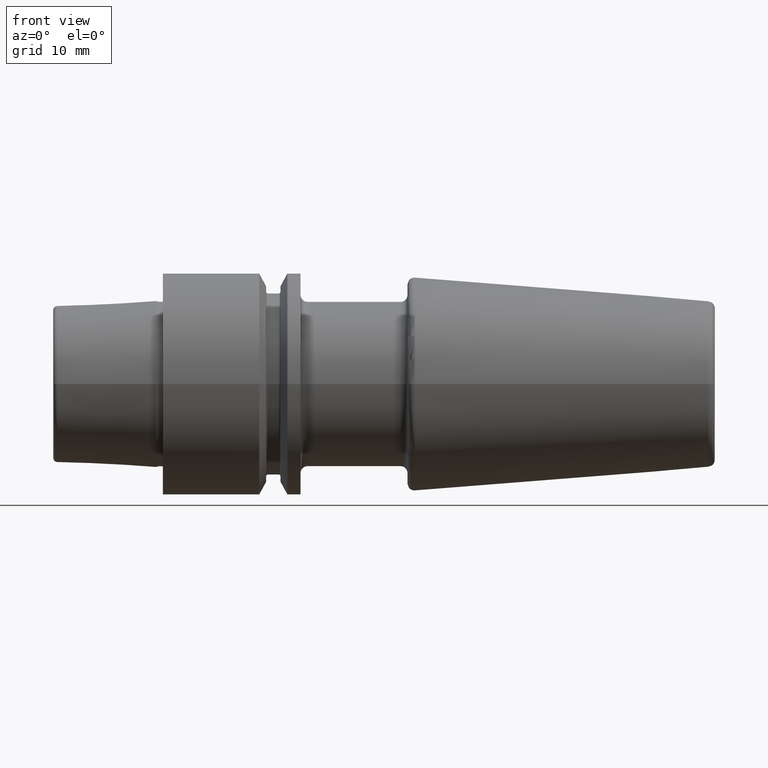
[diagram: clean part render]
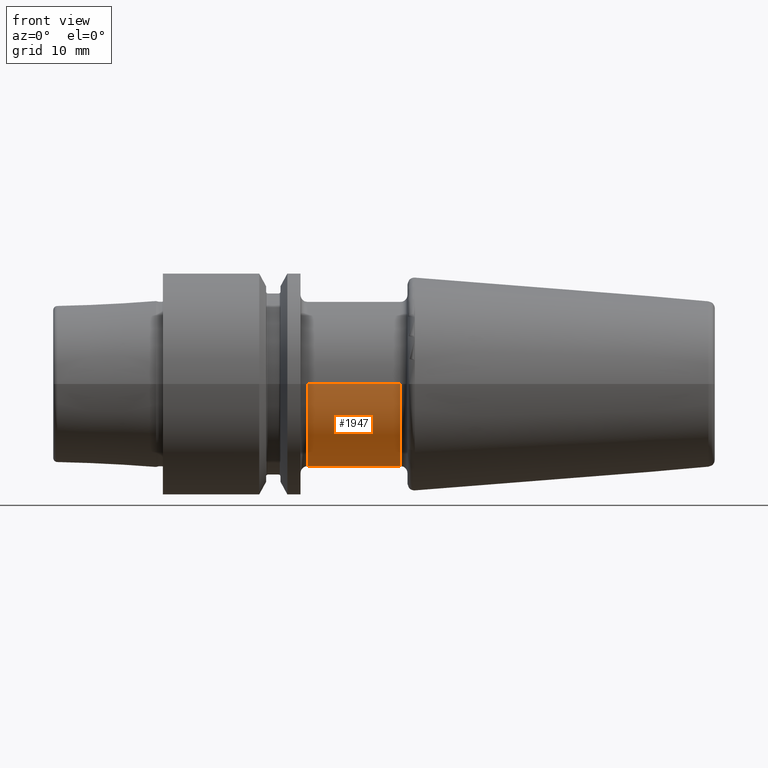
[diagram: same view with one face highlighted and labeled with its STEP entity id]
A machine part, front view. The second image highlights one B-rep face of the part: STEP entity #1947.
In plain terms, the highlighted cylindrical surface (partial cylindrical patch) has radius 12 mm, axis along (1, 0, 0).
Its self-contained STEP definition (entity closure, byte-faithful):
#637=CARTESIAN_POINT('',(2.095E1,0.E0,0.E0));
#638=DIRECTION('',(1.E0,0.E0,0.E0));
#639=DIRECTION('',(0.E0,-1.E0,0.E0));
#640=AXIS2_PLACEMENT_3D('',#637,#638,#639);
#642=DIRECTION('',(-1.E0,0.E0,-5.760412722953E-14));
#643=VECTOR('',#642,1.35E1);
#644=CARTESIAN_POINT('',(3.445E1,-1.2E1,1.493677321870E-13));
#645=LINE('',#644,#643);
#646=CARTESIAN_POINT('',(3.445E1,0.E0,0.E0));
#647=DIRECTION('',(1.E0,0.E0,0.E0));
#648=DIRECTION('',(0.E0,-1.E0,0.E0));
#649=AXIS2_PLACEMENT_3D('',#646,#647,#648);
#651=DIRECTION('',(-1.E0,0.E0,5.760232825704E-14));
#652=VECTOR('',#651,1.35E1);
#653=CARTESIAN_POINT('',(3.445E1,1.2E1,-1.497247178859E-13));
#654=LINE('',#653,#652);
#946=CARTESIAN_POINT('',(2.095E1,-1.2E1,0.E0));
#947=CARTESIAN_POINT('',(2.095E1,1.2E1,0.E0));
#948=VERTEX_POINT('',#946);
#949=VERTEX_POINT('',#947);
#954=CARTESIAN_POINT('',(3.445E1,1.2E1,-1.497247178859E-13));
#955=VERTEX_POINT('',#954);
#956=CARTESIAN_POINT('',(3.445E1,-1.2E1,1.493677321870E-13));
#957=VERTEX_POINT('',#956);
#1933=CARTESIAN_POINT('',(1.69475E1,0.E0,0.E0));
#1934=DIRECTION('',(1.E0,0.E0,0.E0));
#1935=DIRECTION('',(0.E0,-1.E0,0.E0));
#1936=AXIS2_PLACEMENT_3D('',#1933,#1934,#1935);
#1937=CYLINDRICAL_SURFACE('',#1936,1.2E1);
#1938=ORIENTED_EDGE('',*,*,#1923,.F.);
#1940=ORIENTED_EDGE('',*,*,#1939,.F.);
#1942=ORIENTED_EDGE('',*,*,#1941,.T.);
#1944=ORIENTED_EDGE('',*,*,#1943,.T.);
#1945=EDGE_LOOP('',(#1938,#1940,#1942,#1944));
#1946=FACE_OUTER_BOUND('',#1945,.F.);
#1947=ADVANCED_FACE('',(#1946),#1937,.T.);
#641=CIRCLE('',#640,1.2E1);
#650=CIRCLE('',#649,1.2E1);
#1923=EDGE_CURVE('',#948,#949,#641,.T.);
#1939=EDGE_CURVE('',#957,#948,#645,.T.);
#1941=EDGE_CURVE('',#957,#955,#650,.T.);
#1943=EDGE_CURVE('',#955,#949,#654,.T.);